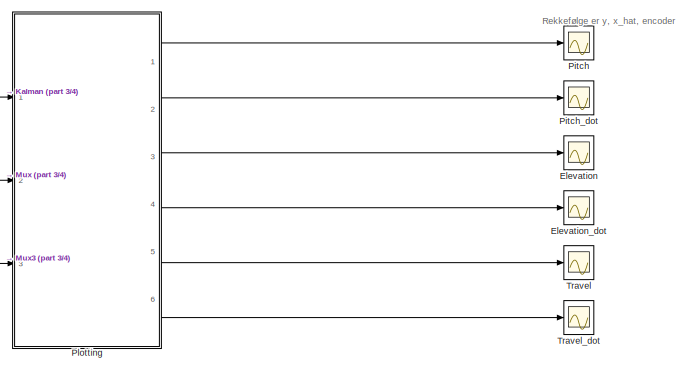
[diagram: root canvas - part 1/4, top right region]
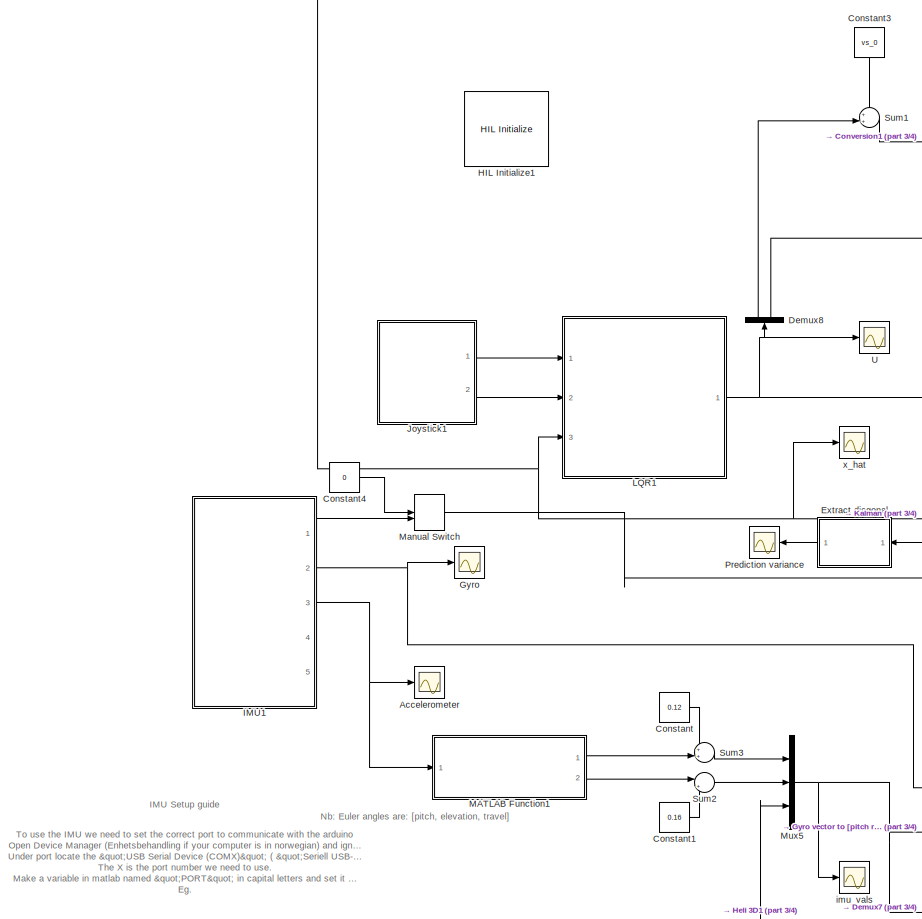
[diagram: root canvas - part 2/4, central region]
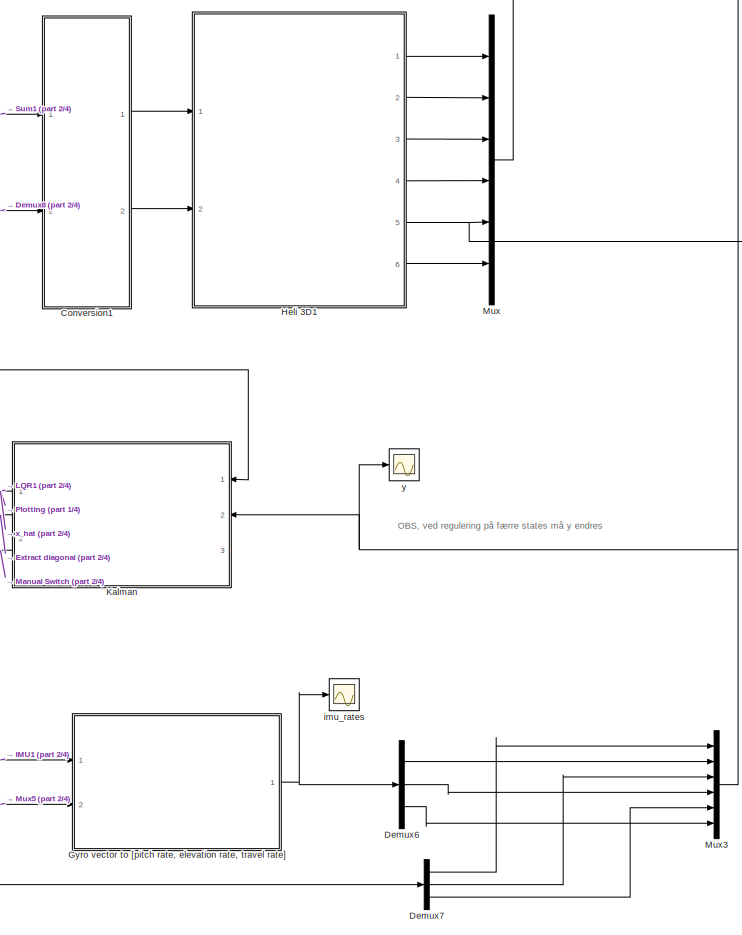
[diagram: root canvas - part 3/4, middle right region]
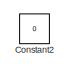
[diagram: root canvas - part 4/4, middle left region]
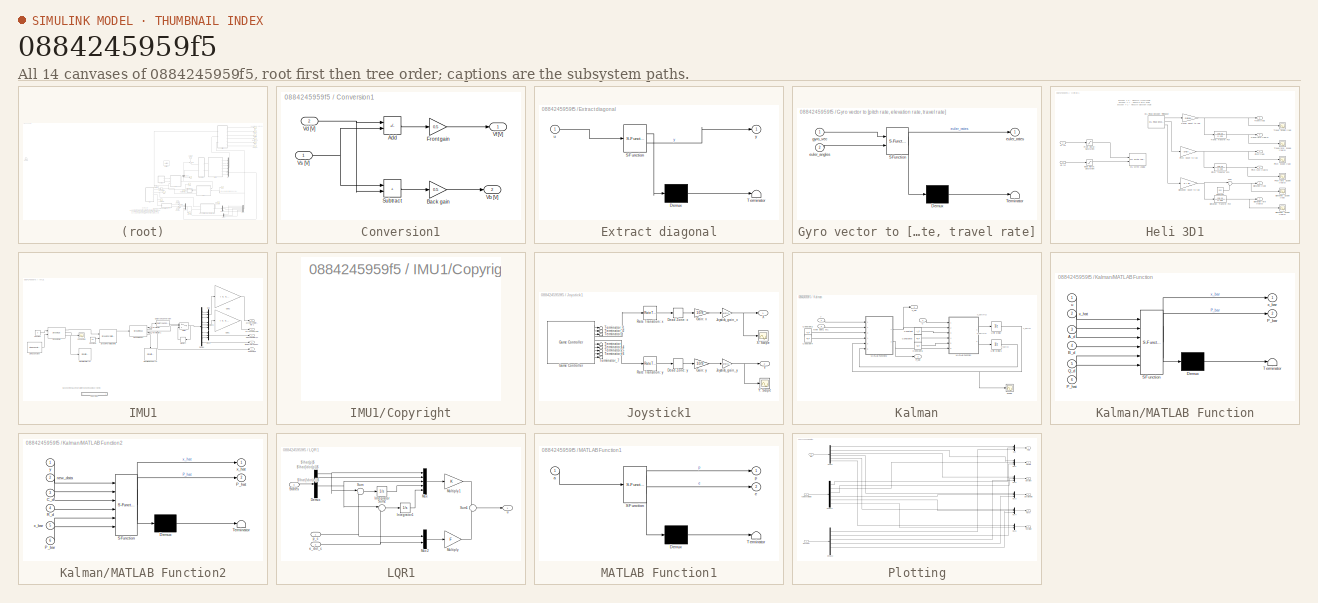
[diagram: thumbnail index - all 14 canvases of the model, root first then tree order]
MODEL slx_0884245959f5
KIND model
CONFIG AbsTol = auto
CONFIG EnableMultiTasking = on
CONFIG FixedStep = 0.002
CONFIG MaxStep = auto
CONFIG MinStep = auto
CONFIG PostLoadFcn = qc_set_target_type(getConfigSet(bdroot, 'QUARC Default Target Configuration'));
CONFIG RelTol = 1e-3
CONFIG SampleTimeConstraint = Unconstrained
CONFIG SolverName = ode1
CONFIG StartTime = 0.0
CONFIG StopTime = inf
BLOCK [Scope] Accelerometer
  Floating = off
  NumInputPorts = 1
  Ports = [1]
  ScopeSpecificationString = Simulink.scopes.TimeScopeBlockCfg('CurrentConfiguration', extmgr.ConfigurationSet(extmgr.Configuration('Core','General UI',true),extmgr.Configuration('Core','Source UI',true),extmgr.Configuration('Sources','WiredSimulink',true,'DataLoggingVariableName','ScopeData1'),extmgr.Configuration('Visuals','Time Domain',true,'SerializedDisplays',{struct('MinYLimReal','-16.07227','MaxYLimReal','5.74974','YLa...<+1444ch>
BLOCK [Constant] Constant
  Value = 0.12
BLOCK [Constant] Constant1
  Value = 0.16
BLOCK [Constant] Constant2
  Commented = on
  Value = 0
BLOCK [Constant] Constant3
  NameLocation = right
  Value = vs_0
BLOCK [Constant] Constant4
  Value = 0
BLOCK [SubSystem] Conversion1
  Ports = [2, 2]
  RequestExecContextInheritance = off
BLOCK [Sum] Conversion1/Add
  IconShape = rectangular
  Inputs = -+
  Ports = [2, 1]
BLOCK [Gain] Conversion1/Back gain
  Gain = 0.5
BLOCK [Gain] Conversion1/Front gain
  Gain = 0.5
BLOCK [Sum] Conversion1/Subtract
  IconShape = rectangular
  Ports = [2, 1]
BLOCK [Outport] Conversion1/Vb [V]
  Port = 2
BLOCK [Inport] Conversion1/Vd [V]
  Port = 2
BLOCK [Outport] Conversion1/Vf [V]
BLOCK [Inport] Conversion1/Vs [V]
BLOCK [Demux] Demux6
  Outputs = 3
  Ports = [1, 3]
BLOCK [Demux] Demux7
  Outputs = 3
  Ports = [1, 3]
BLOCK [Demux] Demux8
  NameLocation = right
  Outputs = 2
  Ports = [1, 2]
BLOCK [Scope] Elevation
  Floating = off
  NumInputPorts = 1
  Ports = [1]
  ScopeSpecificationString = Simulink.scopes.TimeScopeBlockCfg('CurrentConfiguration', extmgr.ConfigurationSet(extmgr.Configuration('Core','General UI',true),extmgr.Configuration('Core','Source UI',true),extmgr.Configuration('Sources','WiredSimulink',true,'DataLoggingVariableName','ScopeData4'),extmgr.Configuration('Visuals','Time Domain',true,'SerializedDisplays',{struct('MinYLimReal','-0.71704','MaxYLimReal','0.16023','YLab...<+1455ch>
BLOCK [Scope] Elevation_dot
  Floating = off
  NumInputPorts = 1
  Ports = [1]
  ScopeSpecificationString = Simulink.scopes.TimeScopeBlockCfg('CurrentConfiguration', extmgr.ConfigurationSet(extmgr.Configuration('Core','General UI',true),extmgr.Configuration('Core','Source UI',true),extmgr.Configuration('Sources','WiredSimulink',true,'DataLoggingVariableName','ScopeData5'),extmgr.Configuration('Visuals','Time Domain',true,'SerializedDisplays',{struct('MinYLimReal','-0.12219','MaxYLimReal','0.37358','YLab...<+1455ch>
BLOCK [SubSystem] Extract diagonal
  ErrorFcn = Stateflow.Translate.translate
  NameLocation = top
  PermitHierarchicalResolution = ExplicitOnly
  Ports = [1, 1]
  RequestExecContextInheritance = off
  SFBlockType = MATLAB Function
  TreatAsAtomicUnit = on
BLOCK [Demux] Extract diagonal/ Demux 
  Outputs = 1
  Ports = [1, 1]
BLOCK [S-Function] Extract diagonal/ SFunction 
  EnableBusSupport = on
  FunctionName = sf_sfun
  PortCounts = [1 2]
  Ports = [1, 2]
  SFcnIsStateOwnerBlock = off
  SFunctionDeploymentMode = off
  Tag = Stateflow S-Function 5
BLOCK [Terminator] Extract diagonal/ Terminator 
BLOCK [Inport] Extract diagonal/u
BLOCK [Outport] Extract diagonal/y
BLOCK [Scope] Gyro
  Floating = off
  NumInputPorts = 1
  Ports = [1]
  ScopeSpecificationString = Simulink.scopes.TimeScopeBlockCfg('CurrentConfiguration', extmgr.ConfigurationSet(extmgr.Configuration('Core','General UI',true),extmgr.Configuration('Core','Source UI',true),extmgr.Configuration('Sources','WiredSimulink',true,'DataLoggingVariableName','ScopeData4'),extmgr.Configuration('Visuals','Time Domain',true,'SerializedDisplays',{struct('MinYLimReal','-1.68003','MaxYLimReal','1.50466','YLab...<+1440ch>
BLOCK [SubSystem] Gyro vector to [pitch rate, elevation rate, travel rate]
  ErrorFcn = Stateflow.Translate.translate
  PermitHierarchicalResolution = ExplicitOnly
  Ports = [2, 1]
  RequestExecContextInheritance = off
  SFBlockType = MATLAB Function
  TreatAsAtomicUnit = on
BLOCK [Demux] Gyro vector to [pitch rate, elevation rate, travel rate]/ Demux 
  Outputs = 1
  Ports = [1, 1]
BLOCK [S-Function] Gyro vector to [pitch rate, elevation rate, travel rate]/ SFunction 
  EnableBusSupport = on
  FunctionName = sf_sfun
  PortCounts = [2 2]
  Ports = [2, 2]
  SFcnIsStateOwnerBlock = off
  SFunctionDeploymentMode = off
  Tag = Stateflow S-Function 3
BLOCK [Terminator] Gyro vector to [pitch rate, elevation rate, travel rate]/ Terminator 
BLOCK [Inport] Gyro vector to [pitch rate, elevation rate, travel rate]/euler_angles
  Port = 2
BLOCK [Outport] Gyro vector to [pitch rate, elevation rate, travel rate]/euler_rates
BLOCK [Inport] Gyro vector to [pitch rate, elevation rate, travel rate]/gyro_vec
BLOCK [Reference] HIL Initialize1  REF=quarc_library/Data Acquisition/Generic/Configuration/HIL Initialize
  AttributesFormatString = %<object_name> (%<board_type>-%<board_number>)
  Ports = []
  Priority = -99
  SourceBlock = quarc_library/Data Acquisition/Generic/Configuration/HIL Initialize
  SourceProductName = QUARC Targets
  SourceType = HIL Initialize
  UserDataPersistent = on
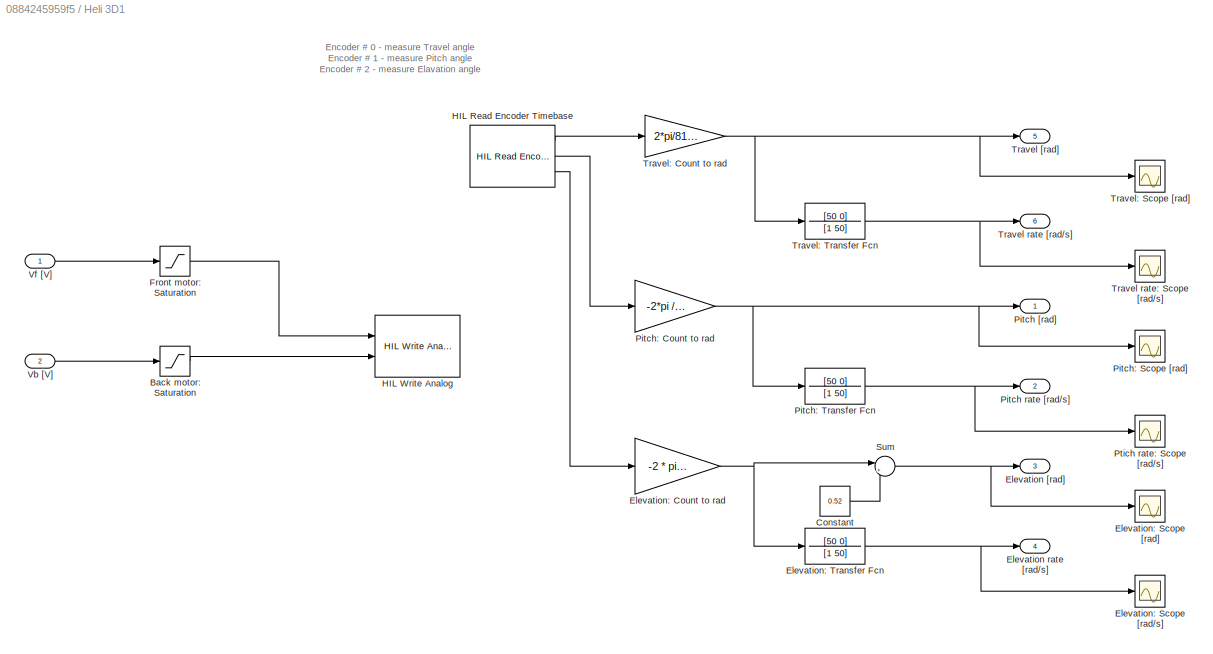
BLOCK [SubSystem] Heli 3D1
  Ports = [2, 6]
  RequestExecContextInheritance = off
BLOCK [Saturate] Heli 3D1/Back motor: Saturation
  LowerLimit = -5
  UpperLimit = 5
BLOCK [Constant] Heli 3D1/Constant
  Value = 0.52
BLOCK [Outport] Heli 3D1/Elevation [rad]
  Port = 3
BLOCK [Outport] Heli 3D1/Elevation rate [rad//s]
  Port = 4
BLOCK [Gain] Heli 3D1/Elevation: Count to rad
  Gain = -2 * pi /4096
BLOCK [Scope] Heli 3D1/Elevation: Scope [rad//s]
  Floating = off
  NumInputPorts = 1
  Ports = [1]
  ScopeSpecificationString = C++SS(StrPVP('Location','[1236, 673, 1560, 912]'),StrPVP('Open','off'),MxPVP('AxesTitles',54,'struct(''axes1'',''%<SignalLabel>'')'),MxPVP('ScopeGraphics',57,'struct(''FigureColor'',''[0.5 0.5 0.5]'',''AxesColor'',''[0 0 0]'',''AxesTickColor'',''[1 1 1]'',''LineColors'',''[1 1 0;1 0 1;0 1 1;1 0 0;0 1 0;0 0 1]'',''LineStyles'',''-|-|-|-|-|-'',''LineWidths'',''[0.5 0.5 0.5 0.5 0.5 0.5]'',''MarkerSty...<+342ch>
BLOCK [Scope] Heli 3D1/Elevation: Scope [rad]
  Floating = off
  NumInputPorts = 1
  Ports = [1]
  ScopeSpecificationString = Simulink.scopes.TimeScopeBlockCfg('CurrentConfiguration', extmgr.ConfigurationSet(extmgr.Configuration('Core','General UI',true),extmgr.Configuration('Core','Source UI',true),extmgr.Configuration('Sources','WiredSimulink',true,'DataLoggingVariableName','ScopeData12','DataLoggingSaveFormat','StructureWithTime','DataLoggingLimitDataPoints',true,'DataLoggingDecimation','1','DataLoggingDecimateData',t...<+1718ch>
BLOCK [TransferFcn] Heli 3D1/Elevation: Transfer Fcn
  Denominator = [1 50]
  Numerator = [50 0]
BLOCK [Saturate] Heli 3D1/Front motor: Saturation
  LowerLimit = -5
  UpperLimit = 5
BLOCK [Reference] Heli 3D1/HIL Read Encoder Timebase  REF=quarc_library/Data Acquisition/Generic/Timebases/HIL Read Encoder
Timebase
  AttributesFormatString = (%<object_name>)
  Ports = [0, 3]
  SourceBlock = quarc_library/Data Acquisition/Generic/Timebases/HIL Read Encoder\nTimebase
  SourceProductName = QUARC Targets
  SourceType = HIL Read Encoder Timebase
  UserDataPersistent = on
BLOCK [Reference] Heli 3D1/HIL Write Analog  REF=quarc_library/Data Acquisition/Generic/Immediate I//O/HIL Write Analog
  AttributesFormatString = (%<object_name>)
  Ports = [2]
  SourceBlock = quarc_library/Data Acquisition/Generic/Immediate I//O/HIL Write Analog
  SourceProductName = QUARC Targets
  SourceType = HIL Write Analog
  UserDataPersistent = on
BLOCK [Outport] Heli 3D1/Pitch [rad]
BLOCK [Outport] Heli 3D1/Pitch rate [rad//s]
  Port = 2
BLOCK [Gain] Heli 3D1/Pitch: Count to rad
  Gain = -2*pi /4096
  NameLocation = top
BLOCK [Scope] Heli 3D1/Pitch: Scope [rad]
  Floating = off
  NumInputPorts = 1
  Ports = [1]
  ScopeSpecificationString = Simulink.scopes.TimeScopeBlockCfg('CurrentConfiguration', extmgr.ConfigurationSet(extmgr.Configuration('Core','General UI',true),extmgr.Configuration('Core','Source UI',true),extmgr.Configuration('Sources','WiredSimulink',true,'DataLoggingVariableName','ScopeData10','DataLoggingSaveFormat','StructureWithTime','DataLoggingLimitDataPoints',true,'DataLoggingDecimation','1','DataLoggingDecimateData',t...<+1651ch>
BLOCK [TransferFcn] Heli 3D1/Pitch: Transfer Fcn
  Denominator = [1 50]
  Numerator = [50 0]
BLOCK [Scope] Heli 3D1/Ptich rate: Scope [rad//s]
  Floating = off
  NumInputPorts = 1
  Ports = [1]
  ScopeSpecificationString = C++SS(StrPVP('Location','[1236, 673, 1560, 912]'),StrPVP('Open','off'),MxPVP('AxesTitles',54,'struct(''axes1'',''%<SignalLabel>'')'),MxPVP('ScopeGraphics',57,'struct(''FigureColor'',''[0.5 0.5 0.5]'',''AxesColor'',''[0 0 0]'',''AxesTickColor'',''[1 1 1]'',''LineColors'',''[1 1 0;1 0 1;0 1 1;1 0 0;0 1 0;0 0 1]'',''LineStyles'',''-|-|-|-|-|-'',''LineWidths'',''[0.5 0.5 0.5 0.5 0.5 0.5]'',''MarkerSty...<+342ch>
BLOCK [Sum] Heli 3D1/Sum
  Inputs = |+-
  Ports = [2, 1]
BLOCK [Outport] Heli 3D1/Travel [rad]
  Port = 5
BLOCK [Outport] Heli 3D1/Travel rate [rad//s]
  Port = 6
BLOCK [Scope] Heli 3D1/Travel rate: Scope [rad//s]
  Floating = off
  NumInputPorts = 1
  Ports = [1]
  ScopeSpecificationString = Simulink.scopes.TimeScopeBlockCfg('CurrentConfiguration', extmgr.ConfigurationSet(extmgr.Configuration('Core','General UI',true),extmgr.Configuration('Core','Source UI',true),extmgr.Configuration('Sources','WiredSimulink',true,'DataLoggingVariableName','ScopeData9','DataLoggingSaveFormat','StructureWithTime','DataLoggingLimitDataPoints',true,'DataLoggingDecimation','1','DataLoggingDecimateData',tr...<+1650ch>
BLOCK [Gain] Heli 3D1/Travel: Count to rad
  Gain = 2*pi/8192
  NameLocation = top
BLOCK [Scope] Heli 3D1/Travel: Scope [rad]
  Floating = off
  NumInputPorts = 1
  Ports = [1]
  ScopeSpecificationString = Simulink.scopes.TimeScopeBlockCfg('CurrentConfiguration', extmgr.ConfigurationSet(extmgr.Configuration('Core','General UI',true),extmgr.Configuration('Core','Source UI',true),extmgr.Configuration('Sources','WiredSimulink',true,'DataLoggingVariableName','ScopeData8','DataLoggingSaveFormat','StructureWithTime','DataLoggingLimitDataPoints',true,'DataLoggingDecimation','1','DataLoggingDecimateData',tr...<+1650ch>
BLOCK [TransferFcn] Heli 3D1/Travel: Transfer Fcn
  Denominator = [1 50]
  Numerator = [50 0]
BLOCK [Inport] Heli 3D1/Vb [V]
  Port = 2
BLOCK [Inport] Heli 3D1/Vf [V]
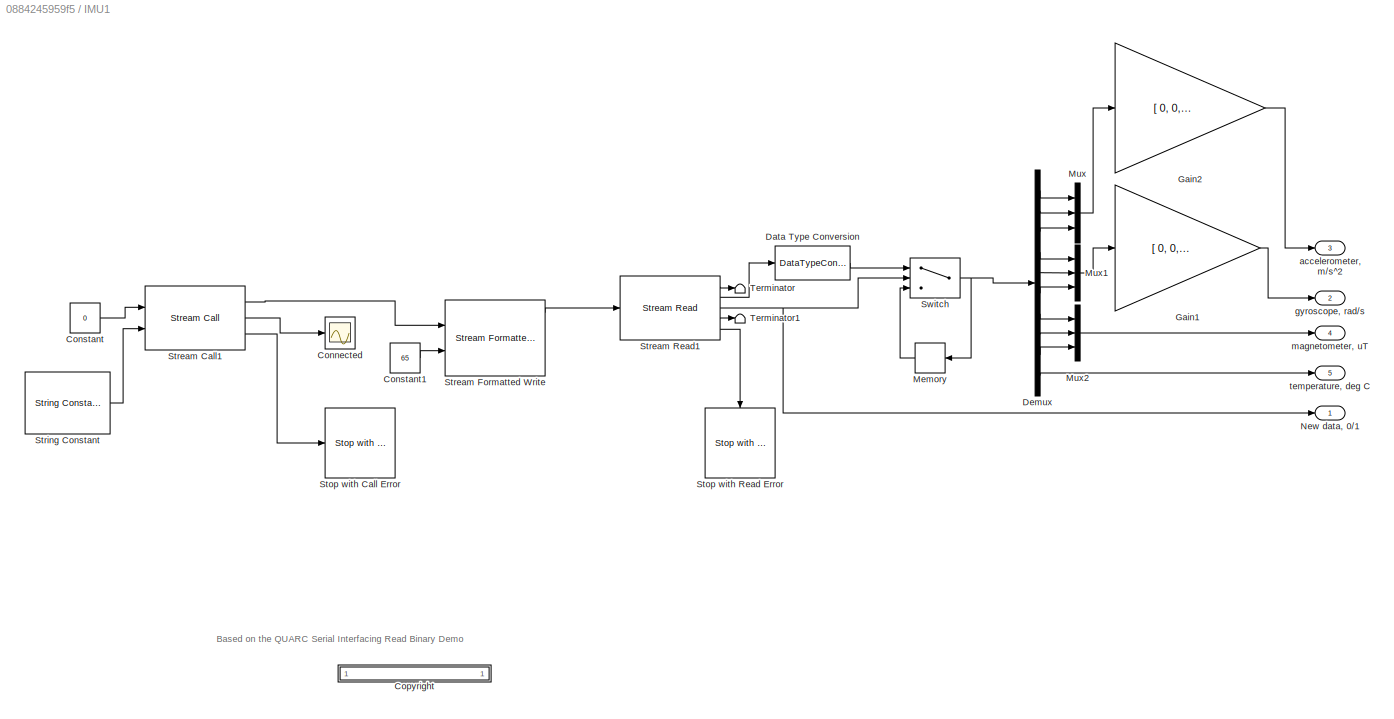
BLOCK [SubSystem] IMU1
  Ports = [0, 5]
  RequestExecContextInheritance = off
BLOCK [Scope] IMU1/Connected
  Floating = off
  NumInputPorts = 1
  Ports = [1]
  ScopeSpecificationString = Simulink.scopes.TimeScopeBlockCfg('CurrentConfiguration', extmgr.ConfigurationSet(extmgr.Configuration('Core','General UI',true),extmgr.Configuration('Core','Source UI',true),extmgr.Configuration('Sources','WiredSimulink',true,'DataLoggingSaveFormat','StructureWithTime','DataLoggingLimitDataPoints',true,'DataLoggingDecimation','1','DataLoggingDecimateData',true,'DataLoggingVariableName','ScopeData...<+909ch>
BLOCK [Constant] IMU1/Constant
  Value = 0
BLOCK [Constant] IMU1/Constant1
  Value = 65
BLOCK [SubSystem] IMU1/<copyright redacted>
  OpenFcn = web('http://www.quanser.com/');
  Permissions = NoReadOrWrite
  PermitHierarchicalResolution = None
  Ports = []
  RequestExecContextInheritance = off
BLOCK [DataTypeConversion] IMU1/Data Type Conversion
  OutDataTypeStr = double
  RndMeth = Floor
  SaturateOnIntegerOverflow = off
BLOCK [Demux] IMU1/Demux
  Outputs = 10
  Ports = [1, 10]
BLOCK [Gain] IMU1/Gain1
  Gain = [ 0, 0, 1; 0, 1, 0; -1, 0, 0]
  Multiplication = Matrix(K*u) (u vector)
BLOCK [Gain] IMU1/Gain2
  Gain = [ 0, 0, 1; 0, 1, 0; -1, 0, 0]
  Multiplication = Matrix(K*u) (u vector)
BLOCK [Memory] IMU1/Memory
  InitialCondition = [0 0 0 0 0 0 0 0 0 0]
  NameLocation = top
BLOCK [Mux] IMU1/Mux
  DisplayOption = bar
  Inputs = 3
  Ports = [3, 1]
BLOCK [Mux] IMU1/Mux1
  DisplayOption = bar
  Inputs = 3
  Ports = [3, 1]
BLOCK [Mux] IMU1/Mux2
  DisplayOption = bar
  Inputs = 3
  Ports = [3, 1]
BLOCK [Outport] IMU1/New data, 0//1
BLOCK [Reference] IMU1/Stop with Call Error  REF=quarc_library/Sinks/Error Handling/Stop with Error
  Ports = [1]
  SourceBlock = quarc_library/Sinks/Error Handling/Stop with Error
  SourceProductName = QUARC Targets
  SourceType = Stop with Error
BLOCK [Reference] IMU1/Stop with Read Error  REF=quarc_library/Sinks/Error Handling/Stop with Error
  NameLocation = left
  Ports = [1]
  SourceBlock = quarc_library/Sinks/Error Handling/Stop with Error
  SourceProductName = QUARC Targets
  SourceType = Stop with Error
BLOCK [Reference] IMU1/Stream Call1  REF=quarc_library/Communications/Intermediate/Stream Call
  Ports = [2, 3]
  SourceBlock = quarc_library/Communications/Intermediate/Stream Call
  SourceProductName = QUARC Targets
  SourceType = Stream Call
BLOCK [Reference] IMU1/Stream Formatted Write  REF=quarc_library/Communications/Intermediate/Stream Formatted
Write
  Ports = [2, 5]
  SourceBlock = quarc_library/Communications/Intermediate/Stream Formatted\nWrite
  SourceProductName = QUARC Targets
  SourceType = Stream Formatted Write
BLOCK [Reference] IMU1/Stream Read1  REF=quarc_library/Communications/Intermediate/Stream Read
  Ports = [1, 5]
  SourceBlock = quarc_library/Communications/Intermediate/Stream Read
  SourceProductName = QUARC Targets
  SourceType = Stream Read
BLOCK [Reference] IMU1/String Constant  REF=quarc_library/Strings/String Constant
  AttributesFormatString = "serial://IMU:3?baud=115200,word=8,parity=none,stop=1"
  Ports = [0, 1]
  SourceBlock = quarc_library/Strings/String Constant
  SourceProductName = QUARC Targets
  SourceType = String Constant
BLOCK [Switch] IMU1/Switch
  Criteria = u2 > Threshold
  InputSameDT = off
  SaturateOnIntegerOverflow = off
BLOCK [Terminator] IMU1/Terminator
BLOCK [Terminator] IMU1/Terminator1
BLOCK [Outport] IMU1/accelerometer, m//s^2
  Port = 3
BLOCK [Outport] IMU1/gyroscope, rad//s
  Port = 2
BLOCK [Outport] IMU1/magnetometer, uT
  Port = 4
BLOCK [Outport] IMU1/temperature, deg C
  Port = 5
BLOCK [SubSystem] Joystick1
  Ports = [0, 2]
  RequestExecContextInheritance = off
BLOCK [DeadZone] Joystick1/Dead Zone: x
  LowerValue = -0.1
  UpperValue = 0.1
BLOCK [DeadZone] Joystick1/Dead Zone: y
  LowerValue = -0.1
  UpperValue = 0.1
BLOCK [Gain] Joystick1/Gain: x
  Gain = 10/9
BLOCK [Gain] Joystick1/Gain: y
  Gain = 10/9
BLOCK [Reference] Joystick1/Game Controller  REF=quarc_library/Devices/Peripherals/Target/Game Controller
  Ports = [0, 10]
  SourceBlock = quarc_library/Devices/Peripherals/Target/Game Controller
  SourceProductName = QUARC Targets
  SourceType = Game Controller
BLOCK [Gain] Joystick1/Joystick_gain_x
  Gain = Joystick_gain_x
BLOCK [Gain] Joystick1/Joystick_gain_y
  Gain = Joystick_gain_y
BLOCK [RateTransition] Joystick1/Rate Transition: x
BLOCK [RateTransition] Joystick1/Rate Transition: y
BLOCK [Terminator] Joystick1/Terminator
BLOCK [Terminator] Joystick1/Terminator1
BLOCK [Terminator] Joystick1/Terminator_1
BLOCK [Terminator] Joystick1/Terminator_2
BLOCK [Terminator] Joystick1/Terminator_4
BLOCK [Terminator] Joystick1/Terminator_5
BLOCK [Terminator] Joystick1/Terminator_6
BLOCK [Terminator] Joystick1/Terminator_7
BLOCK [Outport] Joystick1/X
BLOCK [Scope] Joystick1/X: Scope
  Floating = off
  NumInputPorts = 1
  Ports = [1]
  ScopeSpecificationString = C++SS(StrPVP('Location','[894, 60, 1218, 301]'),StrPVP('Open','off'),StrPVP('ZoomMode','yonly'),MxPVP('AxesTitles',54,'struct(''axes1'',''%<SignalLabel>'')'),MxPVP('ScopeGraphics',57,'struct(''FigureColor'',''[0.5 0.5 0.5]'',''AxesColor'',''[0 0 0]'',''AxesTickColor'',''[1 1 1]'',''LineColors'',''[1 1 0;1 0 1;0 1 1;1 0 0;0 1 0;0 0 1]'',''LineStyles'',''-|-|-|-|-|-'',''LineWidths'',''[0.5 0.5 0.5 0...<+364ch>
BLOCK [Outport] Joystick1/Y
  Port = 2
BLOCK [Scope] Joystick1/Y: Scope
  Floating = off
  NumInputPorts = 1
  Ports = [1]
  ScopeSpecificationString = C++SS(StrPVP('Location','[894, 368, 1218, 604]'),StrPVP('Open','off'),MxPVP('AxesTitles',54,'struct(''axes1'',''%<SignalLabel>'')'),MxPVP('ScopeGraphics',57,'struct(''FigureColor'',''[0.5 0.5 0.5]'',''AxesColor'',''[0 0 0]'',''AxesTickColor'',''[1 1 1]'',''LineColors'',''[1 1 0;1 0 1;0 1 1;1 0 0;0 1 0;0 0 1]'',''LineStyles'',''-|-|-|-|-|-'',''LineWidths'',''[0.5 0.5 0.5 0.5 0.5 0.5]'',''MarkerStyl...<+340ch>
BLOCK [SubSystem] Kalman
  PortSchema = {"entries":[{"content":{"sides":[{"content":{"connectorIds":["In1","In2"]},"type":"ConnectorPlacement.EquallySpacedRectSide","uuid":"24f9cd8f-4092-4518-83c2-133b08542c9b"},{"content":{"connectorIds":["Out1","Out2","In3"],"side":"RIGHT"},"type":"ConnectorPlacement.EquallySpacedRectSide","uuid":"310b26fc-f1ba-4eff-8d76-dc2c566c88f8"},{"content":{"connectorIds":[],"side":"TOP"},"type":"ConnectorPlace...<+403ch>
  Ports = [3, 2]
  RequestExecContextInheritance = off
BLOCK [Constant] Kalman/Constant
  Value = A_d
BLOCK [Constant] Kalman/Constant2
  Value = C_d
BLOCK [Constant] Kalman/Constant4
  Value = R_d
BLOCK [Constant] Kalman/Constant5
  Value = B_d
BLOCK [Constant] Kalman/Constant6
  Value = Q_d
BLOCK [SubSystem] Kalman/MATLAB Function
  ErrorFcn = Stateflow.Translate.translate
  PermitHierarchicalResolution = ExplicitOnly
  Ports = [6, 2]
  RequestExecContextInheritance = off
  SFBlockType = MATLAB Function
  TreatAsAtomicUnit = on
BLOCK [Demux] Kalman/MATLAB Function/ Demux 
  Outputs = 1
  Ports = [1, 1]
BLOCK [S-Function] Kalman/MATLAB Function/ SFunction 
  EnableBusSupport = on
  FunctionName = sf_sfun
  PortCounts = [6 3]
  Ports = [6, 3]
  SFcnIsStateOwnerBlock = off
  SFunctionDeploymentMode = off
  Tag = Stateflow S-Function 2
BLOCK [Terminator] Kalman/MATLAB Function/ Terminator 
BLOCK [Inport] Kalman/MATLAB Function/A_d
  Port = 3
BLOCK [Inport] Kalman/MATLAB Function/B_d
  Port = 4
BLOCK [Outport] Kalman/MATLAB Function/P_bar
  Port = 2
BLOCK [Inport] Kalman/MATLAB Function/P_hat
  Port = 6
BLOCK [Inport] Kalman/MATLAB Function/Q_d
  Port = 5
BLOCK [Inport] Kalman/MATLAB Function/u
BLOCK [Outport] Kalman/MATLAB Function/x_bar
BLOCK [Inport] Kalman/MATLAB Function/x_hat
  Port = 2
BLOCK [SubSystem] Kalman/MATLAB Function2
  ErrorFcn = Stateflow.Translate.translate
  PermitHierarchicalResolution = ExplicitOnly
  Ports = [6, 2]
  RequestExecContextInheritance = off
  SFBlockType = MATLAB Function
  TreatAsAtomicUnit = on
BLOCK [Demux] Kalman/MATLAB Function2/ Demux 
  Outputs = 1
  Ports = [1, 1]
BLOCK [S-Function] Kalman/MATLAB Function2/ SFunction 
  EnableBusSupport = on
  FunctionName = sf_sfun
  PortCounts = [6 3]
  Ports = [6, 3]
  SFcnIsStateOwnerBlock = off
  SFunctionDeploymentMode = off
  Tag = Stateflow S-Function 1
BLOCK [Terminator] Kalman/MATLAB Function2/ Terminator 
BLOCK [Inport] Kalman/MATLAB Function2/C_d
  Port = 3
BLOCK [Inport] Kalman/MATLAB Function2/P_bar
  Port = 6
BLOCK [Outport] Kalman/MATLAB Function2/P_hat
  Port = 2
BLOCK [Inport] Kalman/MATLAB Function2/R_d
  Port = 4
BLOCK [Inport] Kalman/MATLAB Function2/new_data
  Port = 2
BLOCK [Inport] Kalman/MATLAB Function2/x_bar
  Port = 5
BLOCK [Outport] Kalman/MATLAB Function2/x_hat
BLOCK [Inport] Kalman/MATLAB Function2/y
BLOCK [Inport] Kalman/New data, 0//1
  Port = 3
BLOCK [Outport] Kalman/P_hat
  Port = 2
BLOCK [Scope] Kalman/Scope
  Floating = off
  NumInputPorts = 1
  Ports = [1]
  ScopeSpecificationString = Simulink.scopes.TimeScopeBlockCfg('CurrentConfiguration', extmgr.ConfigurationSet(extmgr.Configuration('Core','General UI',true),extmgr.Configuration('Core','Source UI',true),extmgr.Configuration('Sources','WiredSimulink',true,'DataLoggingVariableName','ScopeData1'),extmgr.Configuration('Visuals','Time Domain',true,'SerializedDisplays',{struct('MinYLimReal','-1.05501','MaxYLimReal','3.21186','YLab...<+1498ch>
BLOCK [UnitDelay] Kalman/Unit Delay
  HasFrameUpgradeWarning = on
  InitialCondition = x_0
  SampleTime = -1
BLOCK [UnitDelay] Kalman/Unit Delay1
  HasFrameUpgradeWarning = on
  InitialCondition = P_0
  SampleTime = -1
BLOCK [Inport] Kalman/u
BLOCK [Outport] Kalman/x_hat
BLOCK [Inport] Kalman/y
  Port = 2
BLOCK [SubSystem] LQR1
  Ports = [3, 1]
  RequestExecContextInheritance = off
BLOCK [Demux] LQR1/Demux
  Outputs = 6
  Ports = [1, 6]
BLOCK [Integrator] LQR1/Integrator
  Ports = [1, 1]
BLOCK [Integrator] LQR1/Integrator1
  Ports = [1, 1]
BLOCK [Gain] LQR1/Multiply
  Gain = F
  Multiplication = Matrix(K*u) (u vector)
BLOCK [Gain] LQR1/Multiply1
  Gain = K
  Multiplication = Matrix(K*u) (u vector)
BLOCK [Mux] LQR1/Mux
  DisplayOption = bar
  Inputs = 5
  Ports = [5, 1]
BLOCK [Mux] LQR1/Mux2
  DisplayOption = bar
  Inputs = 2
  Ports = [2, 1]
BLOCK [Inport] LQR1/States
  Port = 3
BLOCK [Sum] LQR1/Sum
  Inputs = |+-
  Ports = [2, 1]
BLOCK [Sum] LQR1/Sum1
  Inputs = -|+
  Ports = [2, 1]
BLOCK [Sum] LQR1/Sum2
  Inputs = |+-
  Ports = [2, 1]
BLOCK [Inport] LQR1/e_dot_c
  Port = 2
BLOCK [Inport] LQR1/p_c
  NameLocation = top
BLOCK [Outport] LQR1/u
BLOCK [SubSystem] MATLAB Function1
  ErrorFcn = Stateflow.Translate.translate
  PermitHierarchicalResolution = ExplicitOnly
  Ports = [1, 2]
  RequestExecContextInheritance = off
  SFBlockType = MATLAB Function
  TreatAsAtomicUnit = on
BLOCK [Demux] MATLAB Function1/ Demux 
  Outputs = 1
  Ports = [1, 1]
BLOCK [S-Function] MATLAB Function1/ SFunction 
  EnableBusSupport = on
  FunctionName = sf_sfun
  PortCounts = [1 3]
  Ports = [1, 3]
  SFcnIsStateOwnerBlock = off
  SFunctionDeploymentMode = off
  Tag = Stateflow S-Function 4
BLOCK [Terminator] MATLAB Function1/ Terminator 
BLOCK [Inport] MATLAB Function1/a
BLOCK [Outport] MATLAB Function1/e
  Port = 2
BLOCK [Outport] MATLAB Function1/p
BLOCK [ManualSwitch] Manual Switch
  CurrentSetting = 0
BLOCK [Mux] Mux
  DisplayOption = bar
  Inputs = 6
  Ports = [6, 1]
BLOCK [Mux] Mux3
  DisplayOption = bar
  Inputs = 6
  Ports = [6, 1]
BLOCK [Mux] Mux5
  DisplayOption = bar
  Inputs = 3
  Ports = [3, 1]
BLOCK [Scope] Pitch
  Floating = off
  NumInputPorts = 1
  Ports = [1]
  ScopeSpecificationString = Simulink.scopes.TimeScopeBlockCfg('CurrentConfiguration', extmgr.ConfigurationSet(extmgr.Configuration('Core','General UI',true),extmgr.Configuration('Core','Source UI',true),extmgr.Configuration('Sources','WiredSimulink',true,'DataLoggingVariableName','ScopeData2'),extmgr.Configuration('Visuals','Time Domain',true,'SerializedDisplays',{struct('MinYLimReal','-0.14669','MaxYLimReal','0.09305','YLab...<+1478ch>
BLOCK [Scope] Pitch_dot
  Floating = off
  NumInputPorts = 1
  Ports = [1]
  ScopeSpecificationString = Simulink.scopes.TimeScopeBlockCfg('CurrentConfiguration', extmgr.ConfigurationSet(extmgr.Configuration('Core','General UI',true),extmgr.Configuration('Core','Source UI',true),extmgr.Configuration('Sources','WiredSimulink',true,'DataLoggingVariableName','ScopeData3'),extmgr.Configuration('Visuals','Time Domain',true,'SerializedDisplays',{struct('MinYLimReal','-0.27877','MaxYLimReal','0.11645','YLab...<+1455ch>
BLOCK [SubSystem] Plotting
  Ports = [3, 6]
  RequestExecContextInheritance = off
BLOCK [Demux] Plotting/Demux
  Outputs = 6
  Ports = [1, 6]
BLOCK [Demux] Plotting/Demux1
  Outputs = 6
  Ports = [1, 6]
BLOCK [Demux] Plotting/Demux2
  Outputs = 6
  Ports = [1, 6]
BLOCK [Outport] Plotting/Elevation
  Port = 3
BLOCK [Outport] Plotting/Elevation rate
  Port = 4
BLOCK [Inport] Plotting/Encoder
  Port = 2
BLOCK [Inport] Plotting/IMU
  Port = 3
BLOCK [Inport] Plotting/Kalman estimate
BLOCK [Mux] Plotting/Mux
  DisplayOption = bar
  Inputs = 3
  Ports = [3, 1]
BLOCK [Mux] Plotting/Mux1
  DisplayOption = bar
  Inputs = 3
  Ports = [3, 1]
BLOCK [Mux] Plotting/Mux2
  DisplayOption = bar
  Inputs = 3
  Ports = [3, 1]
BLOCK [Mux] Plotting/Mux3
  DisplayOption = bar
  Inputs = 3
  Ports = [3, 1]
BLOCK [Mux] Plotting/Mux4
  DisplayOption = bar
  Inputs = 3
  Ports = [3, 1]
BLOCK [Mux] Plotting/Mux5
  DisplayOption = bar
  Inputs = 2
  Ports = [2, 1]
BLOCK [Outport] Plotting/Picth
BLOCK [Outport] Plotting/Pitch rate
  Port = 2
BLOCK [Outport] Plotting/Travel
  Port = 5
BLOCK [Outport] Plotting/Travel rate
  Port = 6
BLOCK [Scope] Prediction variance
  Floating = off
  NumInputPorts = 1
  Ports = [1]
  ScopeSpecificationString = Simulink.scopes.TimeScopeBlockCfg('CurrentConfiguration', extmgr.ConfigurationSet(extmgr.Configuration('Core','General UI',true),extmgr.Configuration('Core','Source UI',true),extmgr.Configuration('Sources','WiredSimulink',true,'DataLoggingVariableName','ScopeData1'),extmgr.Configuration('Visuals','Time Domain',true,'SerializedDisplays',{struct('MinYLimReal','-166.067','MaxYLimReal','1494.60311','Y...<+1568ch>
BLOCK [Sum] Sum1
  Inputs = ++|
  Ports = [2, 1]
BLOCK [Sum] Sum2
  Inputs = |+-
  Ports = [2, 1]
BLOCK [Sum] Sum3
  Inputs = ++|
  Ports = [2, 1]
BLOCK [Scope] Travel
  Floating = off
  NumInputPorts = 1
  Ports = [1]
  ScopeSpecificationString = Simulink.scopes.TimeScopeBlockCfg('CurrentConfiguration', extmgr.ConfigurationSet(extmgr.Configuration('Core','General UI',true),extmgr.Configuration('Core','Source UI',true),extmgr.Configuration('Sources','WiredSimulink',true,'DataLoggingVariableName','ScopeData6'),extmgr.Configuration('Visuals','Time Domain',true,'SerializedDisplays',{struct('MinYLimReal','-0.02767','MaxYLimReal','0.24899','YLab...<+1455ch>
BLOCK [Scope] Travel_dot
  Floating = off
  NumInputPorts = 1
  Ports = [1]
  ScopeSpecificationString = Simulink.scopes.TimeScopeBlockCfg('CurrentConfiguration', extmgr.ConfigurationSet(extmgr.Configuration('Core','General UI',true),extmgr.Configuration('Core','Source UI',true),extmgr.Configuration('Sources','WiredSimulink',true,'DataLoggingVariableName','ScopeData7'),extmgr.Configuration('Visuals','Time Domain',true,'SerializedDisplays',{struct('MinYLimReal','-0.16271','MaxYLimReal','0.04905','YLab...<+1435ch>
BLOCK [Scope] U
  Floating = off
  NumInputPorts = 1
  Ports = [1]
  ScopeSpecificationString = Simulink.scopes.TimeScopeBlockCfg('CurrentConfiguration', extmgr.ConfigurationSet(extmgr.Configuration('Core','General UI',true),extmgr.Configuration('Core','Source UI',true),extmgr.Configuration('Sources','WiredSimulink',true,'DataLoggingVariableName','ScopeData9'),extmgr.Configuration('Visuals','Time Domain',true,'SerializedDisplays',{struct('MinYLimReal','-1.00000','MaxYLimReal','1.00000','YLab...<+1444ch>
BLOCK [Scope] imu_rates
  Floating = off
  NumInputPorts = 1
  Ports = [1]
  ScopeSpecificationString = Simulink.scopes.TimeScopeBlockCfg('CurrentConfiguration', extmgr.ConfigurationSet(extmgr.Configuration('Core','General UI',true),extmgr.Configuration('Core','Source UI',true),extmgr.Configuration('Sources','WiredSimulink',true,'DataLoggingVariableName','ScopeData16'),extmgr.Configuration('Visuals','Time Domain',true,'SerializedDisplays',{struct('MinYLimReal','-0.22263','MaxYLimReal','0.28176','YLa...<+1593ch>
BLOCK [Scope] imu_vals
  Floating = off
  NumInputPorts = 1
  Ports = [1]
  ScopeSpecificationString = Simulink.scopes.TimeScopeBlockCfg('CurrentConfiguration', extmgr.ConfigurationSet(extmgr.Configuration('Core','General UI',true),extmgr.Configuration('Core','Source UI',true),extmgr.Configuration('Sources','WiredSimulink',true,'DataLoggingVariableName','ScopeData14'),extmgr.Configuration('Visuals','Time Domain',true,'SerializedDisplays',{struct('MinYLimReal','-1.20253','MaxYLimReal','0.63407','YLa...<+1453ch>
BLOCK [Scope] x_hat
  Floating = off
  NumInputPorts = 1
  Ports = [1]
  ScopeSpecificationString = Simulink.scopes.TimeScopeBlockCfg('CurrentConfiguration', extmgr.ConfigurationSet(extmgr.Configuration('Core','General UI',true),extmgr.Configuration('Core','Source UI',true),extmgr.Configuration('Sources','WiredSimulink',true,'DataLoggingVariableName','ScopeData10'),extmgr.Configuration('Visuals','Time Domain',true,'SerializedDisplays',{struct('MinYLimReal','-6.63406','MaxYLimReal','1.92717','YLa...<+1555ch>
BLOCK [Scope] y
  Floating = off
  NumInputPorts = 1
  Ports = [1]
  ScopeSpecificationString = Simulink.scopes.TimeScopeBlockCfg('CurrentConfiguration', extmgr.ConfigurationSet(extmgr.Configuration('Core','General UI',true),extmgr.Configuration('Core','Source UI',true),extmgr.Configuration('Sources','WiredSimulink',true,'DataLoggingVariableName','y_uten_u_luft','DataLoggingMaxPoints','2000','DataLoggingSaveFormat','Structure'),extmgr.Configuration('Visuals','Time Domain',true,'SerializedDis...<+1564ch>
ANNOTATION (root): To use the IMU we need to set the correct port to communicate with the arduino Open Device Manager (Enhetsbehandling if your computer is in norwegian) and ignore the potential warning. Under port locate the "USB Serial Device (COMX)" ( "Seriell USB-enhet (COMX)") The X is the port number we need to use. Make a variable in matlab named "PORT" in capital letters and set it equal the port number. Eg....<+100ch>
ANNOTATION (root): IMU Setup guide
ANNOTATION (root): Nb: Euler angles are: [pitch, elevation, travel]
ANNOTATION (root): OBS, ved regulering på færre states må y endres
ANNOTATION (root): Rekkefølge er y, x_hat, encoder
ANNOTATION Heli 3D1: Encoder # 0 - measure Travel angle Encoder # 1 - measure Pitch angle Encoder # 2 - measure Elavation angle
ANNOTATION IMU1: Based on the QUARC Serial Interfacing Read Binary Demo
ANNOTATION Kalman: P_bar[k+1]
ANNOTATION Kalman: P_bar[k]
ANNOTATION Kalman: x_bar[k+1]
ANNOTATION Kalman: x_bar[k]
ANNOTATION LQR1: $\hat{\dot{e}}$
ANNOTATION LQR1: $\hat{\dot{p}}$
ANNOTATION LQR1: $\hat{p}$
LINE Constant1:1 -> Sum2:2
LINE Constant3:1 -> Sum1:1
LINE Constant4:1 -> Manual Switch:1
LINE Constant:1 -> Sum3:1
LINE Conversion1/Add:1 -> Conversion1/Front gain:1
LINE Conversion1/Back gain:1 -> Conversion1/Vb [V]:1
LINE Conversion1/Front gain:1 -> Conversion1/Vf [V]:1
LINE Conversion1/Subtract:1 -> Conversion1/Back gain:1
NET Conversion1/Vd [V]:1 -> Conversion1/Add:1, Conversion1/Subtract:2
NET Conversion1/Vs [V]:1 -> Conversion1/Add:2, Conversion1/Subtract:1
LINE Conversion1:1 -> Heli 3D1:1
LINE Conversion1:2 -> Heli 3D1:2
LINE Demux6:1 -> Mux3:2
LINE Demux6:2 -> Mux3:4
LINE Demux6:3 -> Mux3:6
LINE Demux7:1 -> Mux3:1
LINE Demux7:2 -> Mux3:3
LINE Demux7:3 -> Mux3:5
LINE Demux8:1 -> Sum1:2
LINE Demux8:2 -> Conversion1:2
LINE Extract diagonal:1 -> Prediction variance:1
NET Gyro vector to [pitch rate, elevation rate, travel rate]:1 -> Demux6:1, imu_rates:1
LINE Heli 3D1/Back motor: Saturation:1 -> Heli 3D1/HIL Write Analog:2
LINE Heli 3D1/Constant:1 -> Heli 3D1/Sum:2
NET Heli 3D1/Elevation: Count to rad:1 -> Heli 3D1/Elevation: Transfer Fcn:1, Heli 3D1/Sum:1
NET Heli 3D1/Elevation: Transfer Fcn:1 -> Heli 3D1/Elevation rate [rad//s]:1, Heli 3D1/Elevation: Scope [rad//s]:1
LINE Heli 3D1/Front motor: Saturation:1 -> Heli 3D1/HIL Write Analog:1
LINE Heli 3D1/HIL Read Encoder Timebase:1 -> Heli 3D1/Travel: Count to rad:1
LINE Heli 3D1/HIL Read Encoder Timebase:2 -> Heli 3D1/Pitch: Count to rad:1
LINE Heli 3D1/HIL Read Encoder Timebase:3 -> Heli 3D1/Elevation: Count to rad:1
NET Heli 3D1/Pitch: Count to rad:1 -> Heli 3D1/Pitch [rad]:1, Heli 3D1/Pitch: Scope [rad]:1, Heli 3D1/Pitch: Transfer Fcn:1
NET Heli 3D1/Pitch: Transfer Fcn:1 -> Heli 3D1/Pitch rate [rad//s]:1, Heli 3D1/Ptich rate: Scope [rad//s]:1
NET Heli 3D1/Sum:1 -> Heli 3D1/Elevation [rad]:1, Heli 3D1/Elevation: Scope [rad]:1
NET Heli 3D1/Travel: Count to rad:1 -> Heli 3D1/Travel [rad]:1, Heli 3D1/Travel: Scope [rad]:1, Heli 3D1/Travel: Transfer Fcn:1
NET Heli 3D1/Travel: Transfer Fcn:1 -> Heli 3D1/Travel rate [rad//s]:1, Heli 3D1/Travel rate: Scope [rad//s]:1
LINE Heli 3D1/Vb [V]:1 -> Heli 3D1/Back motor: Saturation:1
LINE Heli 3D1/Vf [V]:1 -> Heli 3D1/Front motor: Saturation:1
LINE Heli 3D1:1 -> Mux:1
LINE Heli 3D1:2 -> Mux:2
LINE Heli 3D1:3 -> Mux:3
LINE Heli 3D1:4 -> Mux:4
NET Heli 3D1:5 -> Mux5:3, Mux:5
LINE Heli 3D1:6 -> Mux:6
LINE IMU1/Constant1:1 -> IMU1/Stream Formatted Write:2
LINE IMU1/Constant:1 -> IMU1/Stream Call1:1
LINE IMU1/Data Type Conversion:1 -> IMU1/Switch:1
LINE IMU1/Demux:1 -> IMU1/Mux:1
LINE IMU1/Demux:10 -> IMU1/temperature, deg C:1
LINE IMU1/Demux:2 -> IMU1/Mux:2
LINE IMU1/Demux:3 -> IMU1/Mux:3
LINE IMU1/Demux:4 -> IMU1/Mux1:1
LINE IMU1/Demux:5 -> IMU1/Mux1:2
LINE IMU1/Demux:6 -> IMU1/Mux1:3
LINE IMU1/Demux:7 -> IMU1/Mux2:1
LINE IMU1/Demux:8 -> IMU1/Mux2:2
LINE IMU1/Demux:9 -> IMU1/Mux2:3
LINE IMU1/Gain1:1 -> IMU1/gyroscope, rad//s:1
LINE IMU1/Gain2:1 -> IMU1/accelerometer, m//s^2:1
LINE IMU1/Memory:1 -> IMU1/Switch:3
LINE IMU1/Mux1:1 -> IMU1/Gain1:1
LINE IMU1/Mux2:1 -> IMU1/magnetometer, uT:1
LINE IMU1/Mux:1 -> IMU1/Gain2:1
LINE IMU1/Stream Call1:1 -> IMU1/Stream Formatted Write:1
LINE IMU1/Stream Call1:2 -> IMU1/Connected:1
LINE IMU1/Stream Call1:3 -> IMU1/Stop with Call Error:1
LINE IMU1/Stream Formatted Write:1 -> IMU1/Stream Read1:1
LINE IMU1/Stream Read1:1 -> IMU1/Terminator:1
LINE IMU1/Stream Read1:2 -> IMU1/Data Type Conversion:1
NET IMU1/Stream Read1:3 -> IMU1/New data, 0//1:1, IMU1/Switch:2
LINE IMU1/Stream Read1:4 -> IMU1/Terminator1:1
LINE IMU1/Stream Read1:5 -> IMU1/Stop with Read Error:1
LINE IMU1/String Constant:1 -> IMU1/Stream Call1:2
NET IMU1/Switch:1 -> IMU1/Demux:1, IMU1/Memory:1
LINE IMU1:1 -> Manual Switch:2
NET IMU1:2 -> Gyro vector to [pitch rate, elevation rate, travel rate]:1, Gyro:1
NET IMU1:3 -> Accelerometer:1, MATLAB Function1:1
LINE Joystick1/Dead Zone: x:1 -> Joystick1/Gain: x:1
LINE Joystick1/Dead Zone: y:1 -> Joystick1/Gain: y:1
LINE Joystick1/Gain: x:1 -> Joystick1/Joystick_gain_x:1
LINE Joystick1/Gain: y:1 -> Joystick1/Joystick_gain_y:1
LINE Joystick1/Game Controller:1 -> Joystick1/Terminator_1:1
LINE Joystick1/Game Controller:10 -> Joystick1/Terminator_7:1
LINE Joystick1/Game Controller:2 -> Joystick1/Terminator_2:1
LINE Joystick1/Game Controller:3 -> Joystick1/Terminator1:1
LINE Joystick1/Game Controller:4 -> Joystick1/Rate Transition: x:1
LINE Joystick1/Game Controller:5 -> Joystick1/Rate Transition: y:1
LINE Joystick1/Game Controller:6 -> Joystick1/Terminator:1
LINE Joystick1/Game Controller:7 -> Joystick1/Terminator_4:1
LINE Joystick1/Game Controller:8 -> Joystick1/Terminator_5:1
LINE Joystick1/Game Controller:9 -> Joystick1/Terminator_6:1
NET Joystick1/Joystick_gain_x:1 -> Joystick1/X: Scope:1, Joystick1/X:1
NET Joystick1/Joystick_gain_y:1 -> Joystick1/Y: Scope:1, Joystick1/Y:1
LINE Joystick1/Rate Transition: x:1 -> Joystick1/Dead Zone: x:1
LINE Joystick1/Rate Transition: y:1 -> Joystick1/Dead Zone: y:1
LINE Joystick1:1 -> LQR1:1
LINE Joystick1:2 -> LQR1:2
LINE Kalman/Constant2:1 -> Kalman/MATLAB Function2:3
LINE Kalman/Constant4:1 -> Kalman/MATLAB Function2:4
LINE Kalman/Constant5:1 -> Kalman/MATLAB Function:4
LINE Kalman/Constant6:1 -> Kalman/MATLAB Function:5
LINE Kalman/Constant:1 -> Kalman/MATLAB Function:3
NET Kalman/MATLAB Function2:1 -> Kalman/MATLAB Function:2, Kalman/x_hat:1
NET Kalman/MATLAB Function2:2 -> Kalman/MATLAB Function:6, Kalman/P_hat:1
LINE Kalman/MATLAB Function:1 -> Kalman/Unit Delay:1
LINE Kalman/MATLAB Function:2 -> Kalman/Unit Delay1:1
LINE Kalman/New data, 0//1:1 -> Kalman/MATLAB Function2:2
LINE Kalman/Unit Delay1:1 -> Kalman/MATLAB Function2:6
NET Kalman/Unit Delay:1 -> Kalman/MATLAB Function2:5, Kalman/Scope:1
LINE Kalman/u:1 -> Kalman/MATLAB Function:1
LINE Kalman/y:1 -> Kalman/MATLAB Function2:1
NET Kalman:1 -> LQR1:3, Plotting:1, x_hat:1
LINE Kalman:2 -> Extract diagonal:1
NET LQR1/Demux:1 -> LQR1/Mux:1, LQR1/Sum:1
LINE LQR1/Demux:2 -> LQR1/Mux:2
NET LQR1/Demux:4 -> LQR1/Mux:3, LQR1/Sum2:1
LINE LQR1/Integrator1:1 -> LQR1/Mux:5
LINE LQR1/Integrator:1 -> LQR1/Mux:4
LINE LQR1/Multiply1:1 -> LQR1/Sum1:1
LINE LQR1/Multiply:1 -> LQR1/Sum1:2
LINE LQR1/Mux2:1 -> LQR1/Multiply:1
LINE LQR1/Mux:1 -> LQR1/Multiply1:1
LINE LQR1/States:1 -> LQR1/Demux:1
LINE LQR1/Sum1:1 -> LQR1/u:1
LINE LQR1/Sum2:1 -> LQR1/Integrator1:1
LINE LQR1/Sum:1 -> LQR1/Integrator:1
NET LQR1/e_dot_c:1 -> LQR1/Mux2:2, LQR1/Sum2:2
NET LQR1/p_c:1 -> LQR1/Mux2:1, LQR1/Sum:2
NET LQR1:1 -> Demux8:1, Kalman:1, U:1
LINE MATLAB Function1:1 -> Sum3:2
LINE MATLAB Function1:2 -> Sum2:1
LINE Manual Switch:1 -> Kalman:3
NET Mux3:1 -> Kalman:2, Plotting:3, y:1
NET Mux5:1 -> Demux7:1, Gyro vector to [pitch rate, elevation rate, travel rate]:2, imu_vals:1
LINE Mux:1 -> Plotting:2
LINE Plotting/Demux1:1 -> Plotting/Mux:2
LINE Plotting/Demux1:2 -> Plotting/Mux1:2
LINE Plotting/Demux1:3 -> Plotting/Mux2:2
LINE Plotting/Demux1:4 -> Plotting/Mux3:2
LINE Plotting/Demux1:5 -> Plotting/Mux4:2
LINE Plotting/Demux1:6 -> Plotting/Mux5:2
LINE Plotting/Demux2:1 -> Plotting/Mux:3
LINE Plotting/Demux2:2 -> Plotting/Mux1:3
LINE Plotting/Demux2:3 -> Plotting/Mux2:3
LINE Plotting/Demux2:4 -> Plotting/Mux3:3
LINE Plotting/Demux2:5 -> Plotting/Mux4:3
LINE Plotting/Demux:1 -> Plotting/Mux:1
LINE Plotting/Demux:2 -> Plotting/Mux1:1
LINE Plotting/Demux:3 -> Plotting/Mux2:1
LINE Plotting/Demux:4 -> Plotting/Mux3:1
LINE Plotting/Demux:5 -> Plotting/Mux4:1
LINE Plotting/Demux:6 -> Plotting/Mux5:1
LINE Plotting/Encoder:1 -> Plotting/Demux2:1
LINE Plotting/IMU:1 -> Plotting/Demux:1
LINE Plotting/Kalman estimate:1 -> Plotting/Demux1:1
LINE Plotting/Mux1:1 -> Plotting/Pitch rate:1
LINE Plotting/Mux2:1 -> Plotting/Elevation:1
LINE Plotting/Mux3:1 -> Plotting/Elevation rate:1
LINE Plotting/Mux4:1 -> Plotting/Travel:1
LINE Plotting/Mux5:1 -> Plotting/Travel rate:1
LINE Plotting/Mux:1 -> Plotting/Picth:1
LINE Plotting:1 -> Pitch:1
LINE Plotting:2 -> Pitch_dot:1
LINE Plotting:3 -> Elevation:1
LINE Plotting:4 -> Elevation_dot:1
LINE Plotting:5 -> Travel:1
LINE Plotting:6 -> Travel_dot:1
LINE Sum1:1 -> Conversion1:1
LINE Sum2:1 -> Mux5:2
LINE Sum3:1 -> Mux5:1
note: NET lines group one-source signal fan-out (src -> all destinations, sorted); 1:1 wires keep LINE
CHART Kalman/MATLAB Function2 states=1 transitions=1
  STATE_LABEL 'eML_blk_kernel()'
  STATE_LABEL "SCRIPT:\nfunction [x_hat,P_hat] = Correction(y,new_data,C_d, R_d, x_bar,P_bar)\n                 \n    if(new_data ~= 0)\n        L = P_bar*C_d'/(C_d*P_bar*C_d'+R_d);\n        x_hat = x_bar+L*(y-C_d*x_bar);\n        P_hat = (eye(6)-L*C_d)*P_bar*(eye(6)-L*C_d)'+L*R_d*L';\n    else\n        x_hat = x_bar;\n        P_hat = P_bar;        \n    end    \nend"
CHART Kalman/MATLAB Function states=1 transitions=1
  STATE_LABEL 'eML_blk_kernel()'
  STATE_LABEL "SCRIPT:\nfunction [x_bar,P_bar] = Prediction(u, x_hat, A_d, B_d, Q_d, P_hat)\n    x_bar = A_d*x_hat+B_d*u;\n    P_bar = A_d*P_hat*A_d' + Q_d;\nend"
CHART Gyro vector to [pitch rate, elevation rate, travel rate] states=1 transitions=1
  STATE_LABEL 'eML_blk_kernel()'
  STATE_LABEL 'SCRIPT:\nfunction euler_rates = gyro_vec_to_euler_rates(gyro_vec,euler_angles)\n%#codegen\n    phi = euler_angles(1);\n    theta = euler_angles(2);\n    %psi = euler_angles(3);\n\n\n    T = [1, sin(phi)*tan(theta), cos(phi)*tan(theta);\n         0, cos(phi),            -sin(phi);\n         0, sin(phi)/cos(theta), cos(phi)/cos(theta)]; \neuler_rates = T*gyro_vec;'
CHART MATLAB Function1 states=1 transitions=1
  STATE_LABEL 'eML_blk_kernel()'
  STATE_LABEL 'SCRIPT:\nfunction [p, e] = orientationFromAcceleration(a)\n\n    ax = a(1); ay = a(2); az = a(3);\n    if az == 0\n        p = sign(ay)*pi/2;\n    else\n        p = atan(ay/az);\n    end\n    \n    if ay == 0 && az == 0\n        e = sign(ax)*pi/2;\n    else\n        e = atan(ax/sqrt(ay^2 + az^2));\n    end\nend'
CHART Extract diagonal states=1 transitions=1
  STATE_LABEL 'eML_blk_kernel()'
  STATE_LABEL 'SCRIPT:\nfunction y = fcn(u)\n\n\ny = diag(u);\n'
CHART  states=0 transitions=0
CHART  states=0 transitions=0
CHART  states=0 transitions=0
CHART  states=0 transitions=0
CHART  states=0 transitions=0
